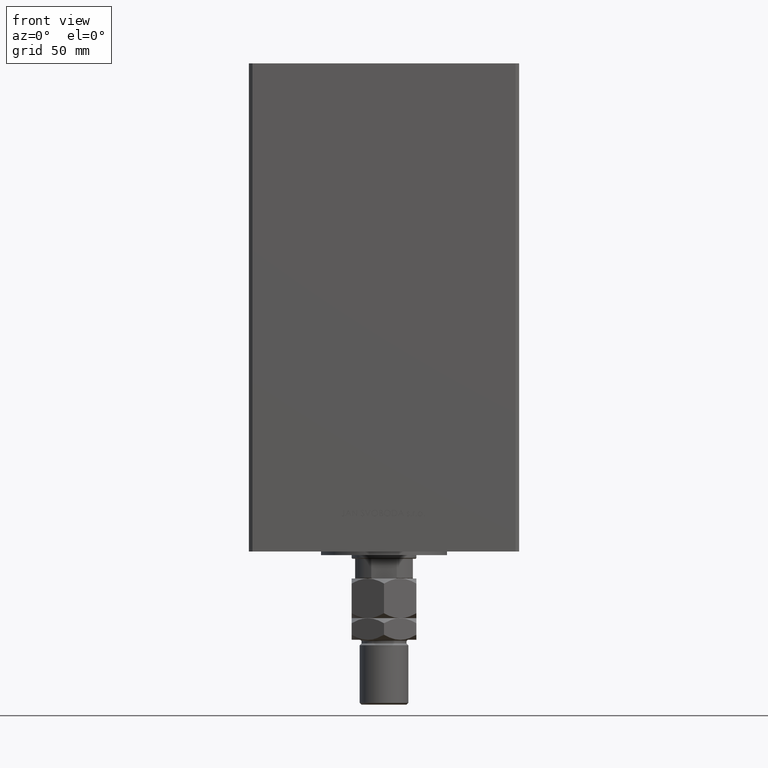
[diagram: clean part render]
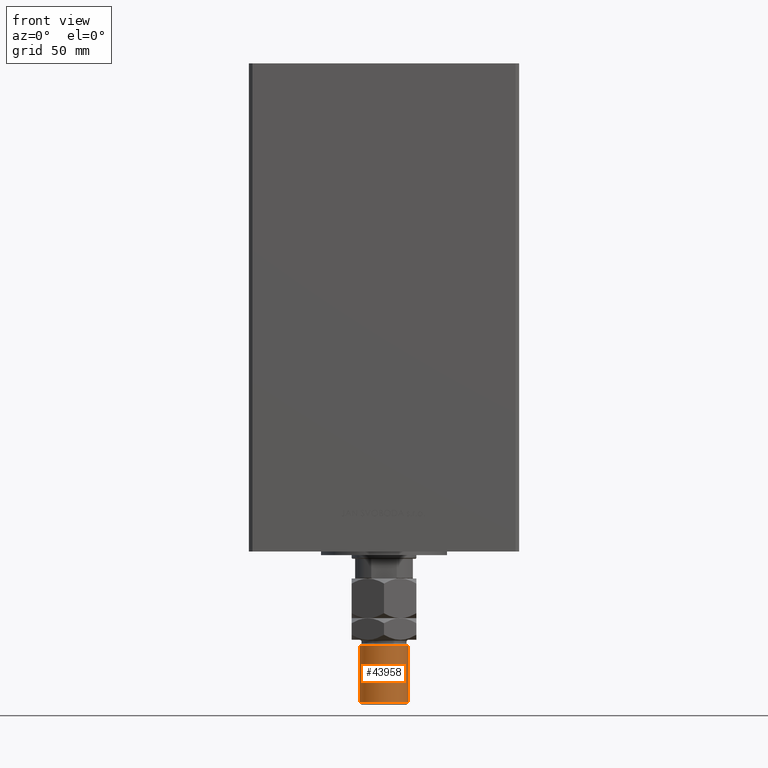
[diagram: same view with one face highlighted and labeled with its STEP entity id]
A machine part, front view. The second image highlights one B-rep face of the part: STEP entity #43958.
In plain terms, the highlighted cylindrical surface (edge-blend (fillet) strip) has radius 13.5 mm, axis along (0, -0, 1).
Its self-contained STEP definition (entity closure, byte-faithful):
#589 = EDGE_CURVE ( 'NONE', #19361, #37977, #20273, .T. ) ;
#935 = CARTESIAN_POINT ( 'NONE',  ( 13.50000000000000000, 1.653273178848926867E-15, 37.00000000000000000 ) ) ;
#3832 = CIRCLE ( 'NONE', #41431, 13.50000000000000000 ) ;
#3913 = ORIENTED_EDGE ( 'NONE', *, *, #16318, .T. ) ;
#6071 = ORIENTED_EDGE ( 'NONE', *, *, #42105, .F. ) ;
#6488 = CARTESIAN_POINT ( 'NONE',  ( 13.50000000000000000, 1.653273178848926867E-15, 68.99999999999998579 ) ) ;
#9219 = AXIS2_PLACEMENT_3D ( 'NONE', #19109, #42377, #45714 ) ;
#9671 = ORIENTED_EDGE ( 'NONE', *, *, #589, .T. ) ;
#9674 = EDGE_CURVE ( 'NONE', #37977, #36377, #3832, .T. ) ;
#12498 = DIRECTION ( 'NONE',  ( 1.000000000000000000, 0.000000000000000000, 0.000000000000000000 ) ) ;
#12643 = ORIENTED_EDGE ( 'NONE', *, *, #9674, .T. ) ;
#16294 = CARTESIAN_POINT ( 'NONE',  ( 13.50000000000000000, 1.653273178848926867E-15, 70.00000000000000000 ) ) ;
#16318 = EDGE_CURVE ( 'NONE', #30774, #19361, #21192, .T. ) ;
#17284 = DIRECTION ( 'NONE',  ( 1.000000000000000000, 0.000000000000000000, 0.000000000000000000 ) ) ;
#17966 = CARTESIAN_POINT ( 'NONE',  ( -13.50000000000000000, 0.000000000000000000, 37.00000000000000000 ) ) ;
#19109 = CARTESIAN_POINT ( 'NONE',  ( 0.000000000000000000, 0.000000000000000000, 70.00000000000000000 ) ) ;
#19361 = VERTEX_POINT ( 'NONE', #34604 ) ;
#20273 = LINE ( 'NONE', #23857, #37967 ) ;
#20637 = DIRECTION ( 'NONE',  ( -0.000000000000000000, -0.000000000000000000, -1.000000000000000000 ) ) ;
#21192 = CIRCLE ( 'NONE', #44067, 13.50000000000000000 ) ;
#23857 = CARTESIAN_POINT ( 'NONE',  ( -13.50000000000000000, 0.000000000000000000, 70.00000000000000000 ) ) ;
#27031 = CYLINDRICAL_SURFACE ( 'NONE', #9219, 13.50000000000000000 ) ;
#29138 = DIRECTION ( 'NONE',  ( -0.000000000000000000, -0.000000000000000000, 1.000000000000000000 ) ) ;
#30774 = VERTEX_POINT ( 'NONE', #6488 ) ;
#31353 = EDGE_LOOP ( 'NONE', ( #6071, #3913, #9671, #12643 ) ) ;
#34604 = CARTESIAN_POINT ( 'NONE',  ( -13.50000000000000000, 0.000000000000000000, 68.99999999999998579 ) ) ;
#35720 = DIRECTION ( 'NONE',  ( 0.000000000000000000, 0.000000000000000000, -1.000000000000000000 ) ) ;
#36219 = CARTESIAN_POINT ( 'NONE',  ( 0.000000000000000000, 0.000000000000000000, 68.99999999999998579 ) ) ;
#36377 = VERTEX_POINT ( 'NONE', #935 ) ;
#37967 = VECTOR ( 'NONE', #47881, 1000.000000000000000 ) ;
#37977 = VERTEX_POINT ( 'NONE', #17966 ) ;
#41431 = AXIS2_PLACEMENT_3D ( 'NONE', #43951, #29138, #12498 ) ;
#42105 = EDGE_CURVE ( 'NONE', #30774, #36377, #47494, .T. ) ;
#42377 = DIRECTION ( 'NONE',  ( -0.000000000000000000, -0.000000000000000000, -1.000000000000000000 ) ) ;
#43951 = CARTESIAN_POINT ( 'NONE',  ( 0.000000000000000000, 0.000000000000000000, 37.00000000000000000 ) ) ;
#43958 = ADVANCED_FACE ( 'NONE', ( #46213 ), #27031, .T. ) ;
#44067 = AXIS2_PLACEMENT_3D ( 'NONE', #36219, #35720, #17284 ) ;
#45714 = DIRECTION ( 'NONE',  ( -1.000000000000000000, 0.000000000000000000, 0.000000000000000000 ) ) ;
#46005 = VECTOR ( 'NONE', #20637, 1000.000000000000000 ) ;
#46213 = FACE_OUTER_BOUND ( 'NONE', #31353, .T. ) ;
#47494 = LINE ( 'NONE', #16294, #46005 ) ;
#47881 = DIRECTION ( 'NONE',  ( -0.000000000000000000, -0.000000000000000000, -1.000000000000000000 ) ) ;